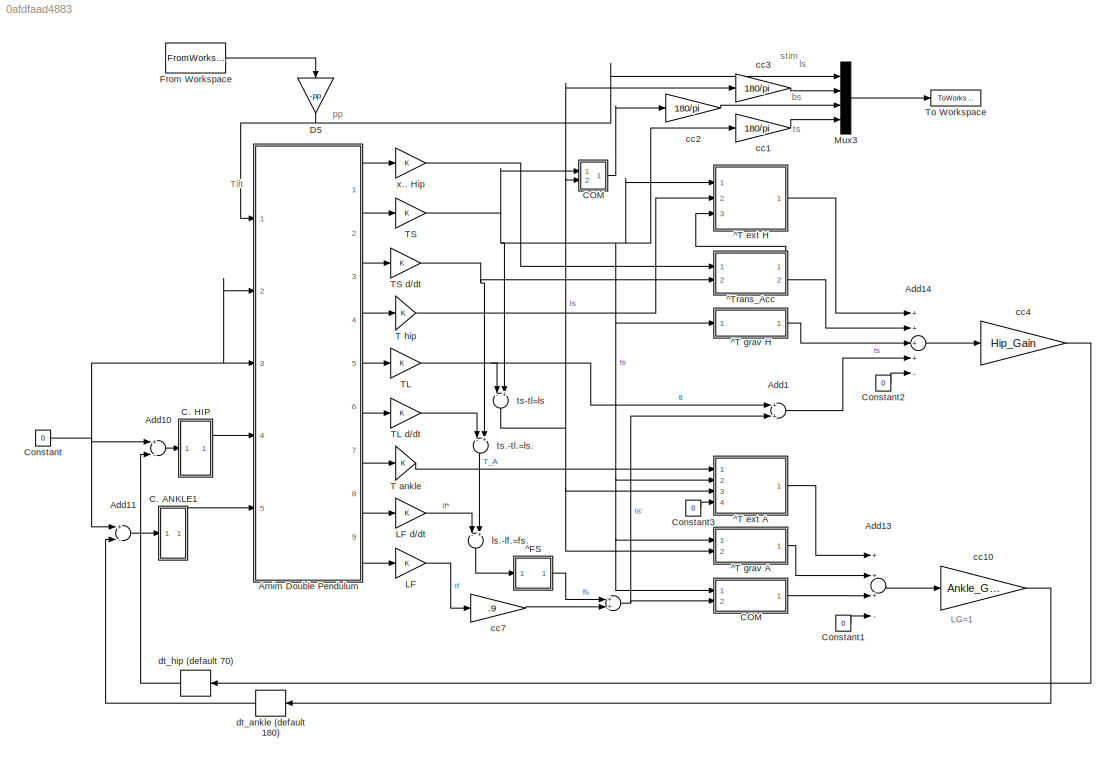
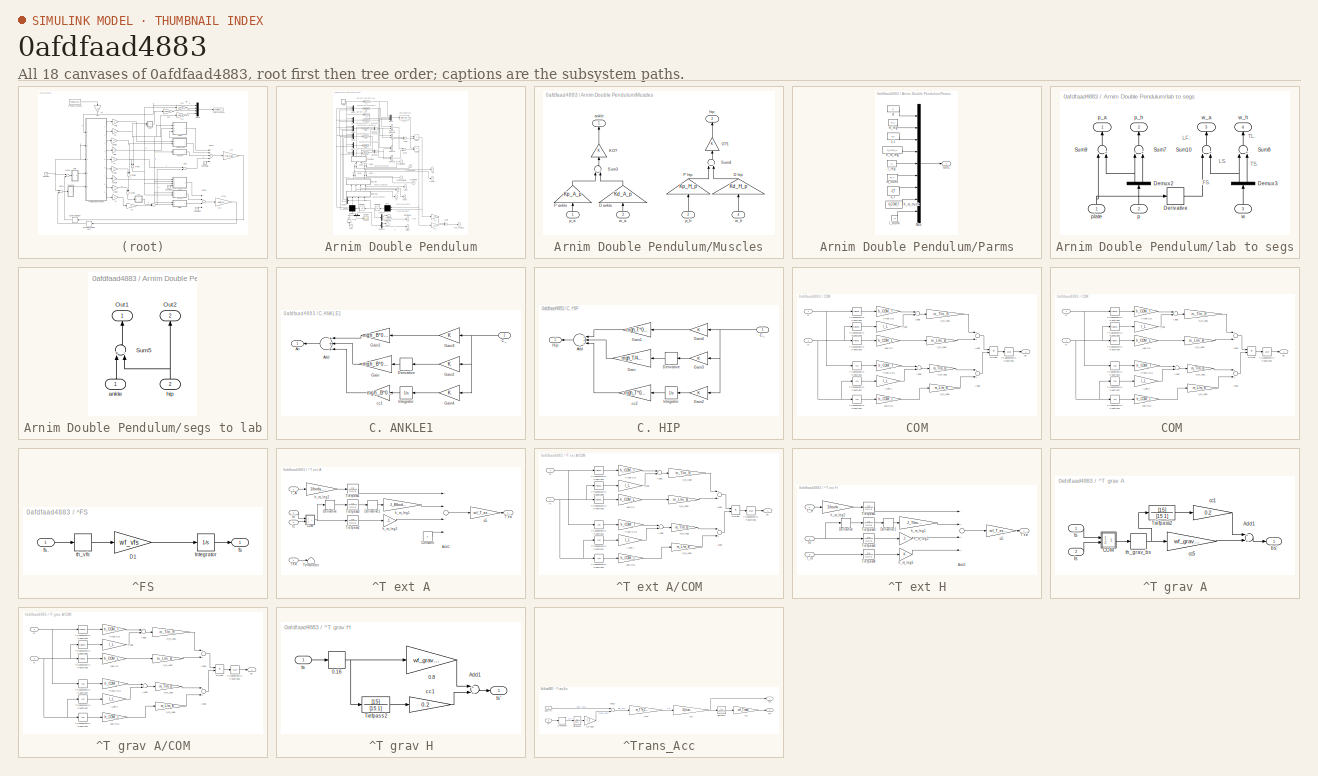
[diagram: thumbnail index - all 18 canvases of the model, root first then tree order]
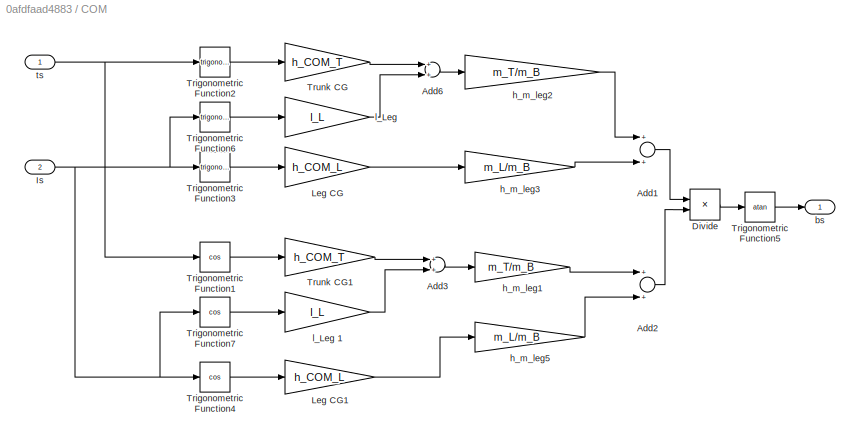
MODEL slx_0afdfaad4883
KIND model
BLOCK [Sum]  
  InputSameDT = off
  OutDataTypeStr = Inherit: Inherit via internal rule
  Ports = [2, 1]
  SaturateOnIntegerOverflow = off
BLOCK [Sum] Add1
  InputSameDT = off
  OutDataTypeStr = Inherit: Inherit via internal rule
  Ports = [2, 1]
  SaturateOnIntegerOverflow = off
BLOCK [Sum] Add10
  InputSameDT = off
  Inputs = +-
  OutDataTypeStr = Inherit: Inherit via internal rule
  Ports = [2, 1]
  SaturateOnIntegerOverflow = off
BLOCK [Sum] Add11
  InputSameDT = off
  Inputs = +-
  OutDataTypeStr = Inherit: Inherit via internal rule
  Ports = [2, 1]
  SaturateOnIntegerOverflow = off
BLOCK [Sum] Add13
  InputSameDT = off
  Inputs = +++-
  OutDataTypeStr = Inherit: Inherit via internal rule
  Ports = [4, 1]
  SaturateOnIntegerOverflow = off
BLOCK [Sum] Add14
  InputSameDT = off
  Inputs = ++++-
  OutDataTypeStr = Inherit: Inherit via internal rule
  Ports = [5, 1]
  SaturateOnIntegerOverflow = off
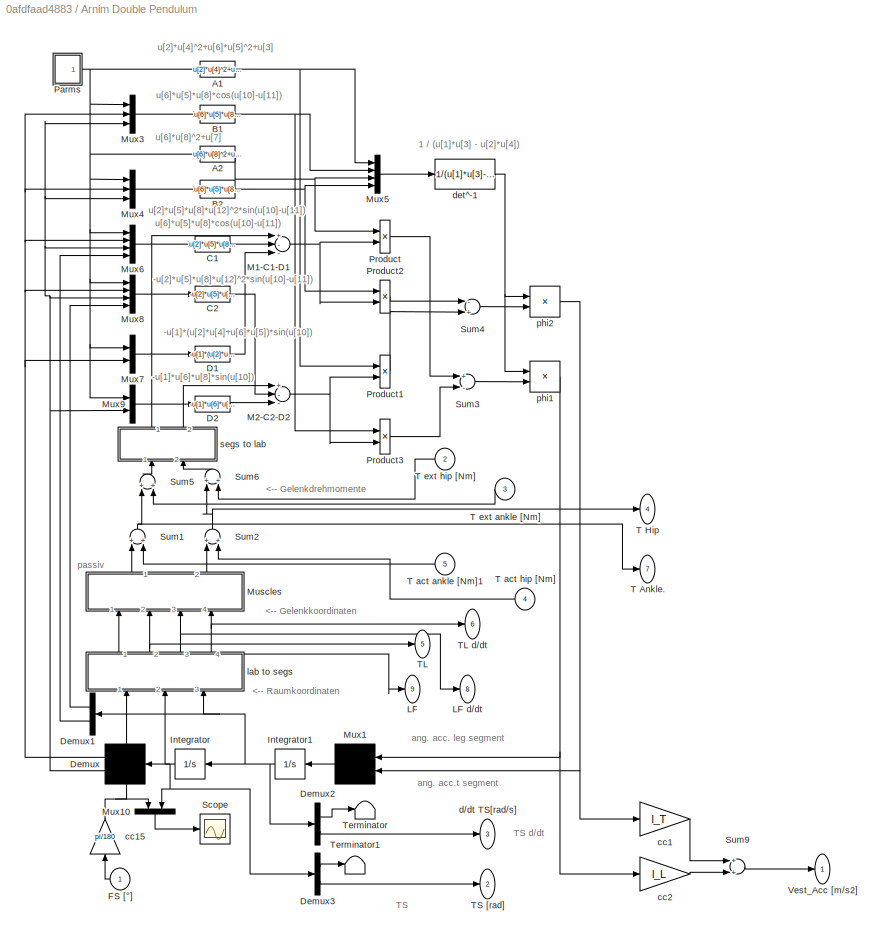
BLOCK [SubSystem] Arnim Double Pendulum
  FunctionWithSeparateData = off
  MaskHideContents = off
  MinAlgLoopOccurrences = off
  Opaque = off
  Ports = [5, 9]
  PropExecContextOutsideSubsystem = off
  RTWSystemCode = Auto
  RequestExecContextInheritance = off
BLOCK [Inport] Arnim Double Pendulum/ T act ankle [Nm]1
  IconDisplay = Port number
  Port = 5
BLOCK [Fcn] Arnim Double Pendulum/A1
  Expr = u[2]*u[4]^2+u[6]*u[5]^2+u[3]
BLOCK [Fcn] Arnim Double Pendulum/A2
  Expr = u[6]*u[8]^2+u[7]
BLOCK [Fcn] Arnim Double Pendulum/B1
  Expr = u[6]*u[5]*u[8]*cos(u[10]-u[11])
BLOCK [Fcn] Arnim Double Pendulum/B2
  Expr = u[6]*u[5]*u[8]*cos(u[10]-u[11])
BLOCK [Fcn] Arnim Double Pendulum/C1
  Expr = u[2]*u[5]*u[8]*u[12]^2*sin(u[10]-u[11])
BLOCK [Fcn] Arnim Double Pendulum/C2
  Expr = -u[2]*u[5]*u[8]*u[12]^2*sin(u[10]-u[11])
BLOCK [Fcn] Arnim Double Pendulum/D1
  Expr = -u[1]*(u[2]*u[4]+u[6]*u[5])*sin(u[10])
BLOCK [Fcn] Arnim Double Pendulum/D2
  Expr = -u[1]*u[6]*u[8]*sin(u[10])
BLOCK [Demux] Arnim Double Pendulum/Demux
  Outputs = 2
  Ports = [1, 2]
BLOCK [Demux] Arnim Double Pendulum/Demux1
  Outputs = 2
  Ports = [1, 2]
BLOCK [Demux] Arnim Double Pendulum/Demux2
  Outputs = 2
  Ports = [1, 2]
BLOCK [Demux] Arnim Double Pendulum/Demux3
  Outputs = 2
  Ports = [1, 2]
BLOCK [Inport] Arnim Double Pendulum/FS [°]
  IconDisplay = Port number
BLOCK [Integrator] Arnim Double Pendulum/Integrator
  InitialCondition = [0.0*pi,0.0*pi]
  Ports = [1, 1]
BLOCK [Integrator] Arnim Double Pendulum/Integrator1
  InitialCondition = [0,0]
  Ports = [1, 1]
BLOCK [Outport] Arnim Double Pendulum/LF
  IconDisplay = Port number
  InitialOutput = 0
  Port = 9
BLOCK [Outport] Arnim Double Pendulum/LF d//dt
  IconDisplay = Port number
  InitialOutput = 0
  Port = 8
BLOCK [Sum] Arnim Double Pendulum/M1-C1-D1
  Inputs = +--
  Ports = [3, 1]
BLOCK [Sum] Arnim Double Pendulum/M2-C2-D2
  Inputs = +--
  Ports = [3, 1]
BLOCK [SubSystem] Arnim Double Pendulum/Muscles
  FunctionWithSeparateData = off
  MaskHideContents = off
  MinAlgLoopOccurrences = off
  Opaque = off
  Ports = [4, 2]
  PropExecContextOutsideSubsystem = off
  RTWSystemCode = Auto
  RequestExecContextInheritance = off
BLOCK [Gain] Arnim Double Pendulum/Muscles/D ankle
  Gain = Kd_A_p
BLOCK [Gain] Arnim Double Pendulum/Muscles/D hip
  Gain = Kd_H_p
BLOCK [Gain] Arnim Double Pendulum/Muscles/KO?
BLOCK [Gain] Arnim Double Pendulum/Muscles/O?1
BLOCK [Gain] Arnim Double Pendulum/Muscles/P ankle
  Gain = Kp_A_p
BLOCK [Gain] Arnim Double Pendulum/Muscles/P hip
  Gain = Kp_H_p
BLOCK [Sum] Arnim Double Pendulum/Muscles/Sum3
  Inputs = --
  Ports = [2, 1]
BLOCK [Sum] Arnim Double Pendulum/Muscles/Sum4
  Inputs = --
  Ports = [2, 1]
BLOCK [Outport] Arnim Double Pendulum/Muscles/ankle
  IconDisplay = Port number
  InitialOutput = 0
BLOCK [Outport] Arnim Double Pendulum/Muscles/hip
  IconDisplay = Port number
  InitialOutput = 0
  Port = 2
BLOCK [Inport] Arnim Double Pendulum/Muscles/p_a
  IconDisplay = Port number
BLOCK [Inport] Arnim Double Pendulum/Muscles/p_h
  IconDisplay = Port number
  Port = 2
BLOCK [Inport] Arnim Double Pendulum/Muscles/w_a
  IconDisplay = Port number
  Port = 3
BLOCK [Inport] Arnim Double Pendulum/Muscles/w_h
  IconDisplay = Port number
  Port = 4
BLOCK [Mux] Arnim Double Pendulum/Mux1
  Inputs = 2
  Ports = [2, 1]
BLOCK [Mux] Arnim Double Pendulum/Mux10
  Inputs = 2
  Ports = [2, 1]
BLOCK [Mux] Arnim Double Pendulum/Mux3
  Inputs = 3
  Ports = [3, 1]
BLOCK [Mux] Arnim Double Pendulum/Mux4
  Inputs = 3
  Ports = [3, 1]
BLOCK [Mux] Arnim Double Pendulum/Mux5
  Ports = [4, 1]
BLOCK [Mux] Arnim Double Pendulum/Mux6
  Ports = [4, 1]
BLOCK [Mux] Arnim Double Pendulum/Mux7
  Inputs = 2
  Ports = [2, 1]
BLOCK [Mux] Arnim Double Pendulum/Mux8
  Ports = [4, 1]
BLOCK [Mux] Arnim Double Pendulum/Mux9
  Inputs = 2
  Ports = [2, 1]
BLOCK [SubSystem] Arnim Double Pendulum/Parms
  FunctionWithSeparateData = off
  MaskHideContents = off
  MinAlgLoopOccurrences = off
  Opaque = off
  Ports = [0, 1]
  PropExecContextOutsideSubsystem = off
  RTWSystemCode = Auto
  RequestExecContextInheritance = off
BLOCK [Constant] Arnim Double Pendulum/Parms/J_L
  Value = J_L
BLOCK [Constant] Arnim Double Pendulum/Parms/J_T
  Value = J_T
BLOCK [Mux] Arnim Double Pendulum/Parms/Mux
  Inputs = 9
  Ports = [9, 1]
BLOCK [Outport] Arnim Double Pendulum/Parms/Out1
  IconDisplay = Port number
  InitialOutput = 0
BLOCK [Constant] Arnim Double Pendulum/Parms/g
  Value = g
BLOCK [Constant] Arnim Double Pendulum/Parms/h_m_leg
  Value = h_COM_L
BLOCK [Constant] Arnim Double Pendulum/Parms/h_m_trunk
  Value = h_COM_T
BLOCK [Constant] Arnim Double Pendulum/Parms/l_leg
  Value = l_L
BLOCK [Constant] Arnim Double Pendulum/Parms/l_trunk
  Value = l_T
BLOCK [Constant] Arnim Double Pendulum/Parms/m_leg
  Value = m_L
BLOCK [Constant] Arnim Double Pendulum/Parms/m_trunk
  Value = m_T
BLOCK [Product] Arnim Double Pendulum/Product
  Ports = [2, 1]
BLOCK [Product] Arnim Double Pendulum/Product1
  Ports = [2, 1]
BLOCK [Product] Arnim Double Pendulum/Product2
  Ports = [2, 1]
BLOCK [Product] Arnim Double Pendulum/Product3
  Ports = [2, 1]
BLOCK [Scope] Arnim Double Pendulum/Scope
  Floating = off
  NumInputPorts = 1
  Ports = [1]
  SampleTime = 0
  ShowLegends = off
  TickLabels = on
  YMax = 0.0045
  YMin = -0.0005
BLOCK [Sum] Arnim Double Pendulum/Sum1
  Ports = [2, 1]
BLOCK [Sum] Arnim Double Pendulum/Sum2
  Ports = [2, 1]
BLOCK [Sum] Arnim Double Pendulum/Sum3
  Inputs = +-
  Ports = [2, 1]
BLOCK [Sum] Arnim Double Pendulum/Sum4
  Inputs = -+
  Ports = [2, 1]
BLOCK [Sum] Arnim Double Pendulum/Sum5
  Ports = [2, 1]
BLOCK [Sum] Arnim Double Pendulum/Sum6
  Ports = [2, 1]
BLOCK [Sum] Arnim Double Pendulum/Sum9
  Ports = [2, 1]
BLOCK [Outport] Arnim Double Pendulum/T  Ankle.
  IconDisplay = Port number
  InitialOutput = 0
  Port = 7
BLOCK [Outport] Arnim Double Pendulum/T  Hip 
  IconDisplay = Port number
  InitialOutput = 0
  Port = 4
BLOCK [Inport] Arnim Double Pendulum/T act hip [Nm]
  IconDisplay = Port number
  Port = 4
BLOCK [Inport] Arnim Double Pendulum/T ext ankle [Nm]
  IconDisplay = Port number
  Port = 3
BLOCK [Inport] Arnim Double Pendulum/T ext hip [Nm]
  IconDisplay = Port number
  Port = 2
BLOCK [Outport] Arnim Double Pendulum/TL
  IconDisplay = Port number
  InitialOutput = 0
  Port = 5
BLOCK [Outport] Arnim Double Pendulum/TL d//dt
  IconDisplay = Port number
  InitialOutput = 0
  Port = 6
BLOCK [Outport] Arnim Double Pendulum/TS [rad]
  IconDisplay = Port number
  InitialOutput = 0
  Port = 2
BLOCK [Terminator] Arnim Double Pendulum/Terminator
BLOCK [Terminator] Arnim Double Pendulum/Terminator1
BLOCK [Outport] Arnim Double Pendulum/Vest_Acc [m//s2]
  IconDisplay = Port number
  InitialOutput = 0
BLOCK [Gain] Arnim Double Pendulum/cc1
  Gain = l_T
  OutDataTypeStr = Inherit: Inherit via internal rule
  ParamDataTypeStr = Inherit: Inherit via internal rule
  SaturateOnIntegerOverflow = off
BLOCK [Gain] Arnim Double Pendulum/cc15
  Gain = pi/180
  OutDataTypeStr = Inherit: Inherit via internal rule
  ParamDataTypeStr = Inherit: Inherit via internal rule
  SaturateOnIntegerOverflow = off
BLOCK [Gain] Arnim Double Pendulum/cc2
  Gain = l_L
  OutDataTypeStr = Inherit: Inherit via internal rule
  ParamDataTypeStr = Inherit: Inherit via internal rule
  SaturateOnIntegerOverflow = off
BLOCK [Outport] Arnim Double Pendulum/d//dt TS[rad//s]
  IconDisplay = Port number
  InitialOutput = 0
  Port = 3
BLOCK [Fcn] Arnim Double Pendulum/det^-1
  Expr = 1/(u[1]*u[3]-u[2]*u[4])
BLOCK [SubSystem] Arnim Double Pendulum/lab to segs
  FunctionWithSeparateData = off
  MaskHideContents = off
  MinAlgLoopOccurrences = off
  Opaque = off
  Ports = [3, 4]
  PropExecContextOutsideSubsystem = off
  RTWSystemCode = Auto
  RequestExecContextInheritance = off
BLOCK [Demux] Arnim Double Pendulum/lab to segs/Demux2
  Outputs = 2
  Ports = [1, 2]
BLOCK [Demux] Arnim Double Pendulum/lab to segs/Demux3
  Outputs = 2
  Ports = [1, 2]
BLOCK [Derivative] Arnim Double Pendulum/lab to segs/Derivative
BLOCK [Sum] Arnim Double Pendulum/lab to segs/Sum10
  Inputs = -+
  Ports = [2, 1]
BLOCK [Sum] Arnim Double Pendulum/lab to segs/Sum7
  Inputs = -+
  Ports = [2, 1]
BLOCK [Sum] Arnim Double Pendulum/lab to segs/Sum8
  Inputs = -+
  Ports = [2, 1]
BLOCK [Sum] Arnim Double Pendulum/lab to segs/Sum9
  Inputs = -+
  Ports = [2, 1]
BLOCK [Inport] Arnim Double Pendulum/lab to segs/p
  IconDisplay = Port number
  Port = 2
BLOCK [Outport] Arnim Double Pendulum/lab to segs/p_a
  IconDisplay = Port number
  InitialOutput = 0
BLOCK [Outport] Arnim Double Pendulum/lab to segs/p_h
  IconDisplay = Port number
  InitialOutput = 0
  Port = 2
BLOCK [Inport] Arnim Double Pendulum/lab to segs/plate
  IconDisplay = Port number
BLOCK [Inport] Arnim Double Pendulum/lab to segs/w
  IconDisplay = Port number
  Port = 3
BLOCK [Outport] Arnim Double Pendulum/lab to segs/w_a
  IconDisplay = Port number
  InitialOutput = 0
  Port = 3
BLOCK [Outport] Arnim Double Pendulum/lab to segs/w_h
  IconDisplay = Port number
  InitialOutput = 0
  Port = 4
BLOCK [Product] Arnim Double Pendulum/phi1
  Ports = [2, 1]
BLOCK [Product] Arnim Double Pendulum/phi2
  Ports = [2, 1]
BLOCK [SubSystem] Arnim Double Pendulum/segs to lab
  FunctionWithSeparateData = off
  MaskHideContents = off
  MinAlgLoopOccurrences = off
  Opaque = off
  Ports = [2, 2]
  PropExecContextOutsideSubsystem = off
  RTWSystemCode = Auto
  RequestExecContextInheritance = off
BLOCK [Outport] Arnim Double Pendulum/segs to lab/Out1
  IconDisplay = Port number
  InitialOutput = 0
BLOCK [Outport] Arnim Double Pendulum/segs to lab/Out2
  IconDisplay = Port number
  InitialOutput = 0
  Port = 2
BLOCK [Sum] Arnim Double Pendulum/segs to lab/Sum5
  Inputs = +-
  Ports = [2, 1]
BLOCK [Inport] Arnim Double Pendulum/segs to lab/ankle
  IconDisplay = Port number
BLOCK [Inport] Arnim Double Pendulum/segs to lab/hip
  IconDisplay = Port number
  Port = 2
BLOCK [SubSystem] C. ANKLE1
  FunctionWithSeparateData = off
  MaskHideContents = off
  MinAlgLoopOccurrences = off
  Opaque = off
  Ports = [1, 1]
  PropExecContextOutsideSubsystem = off
  RTWSystemCode = Auto
  RequestExecContextInheritance = off
BLOCK [Outport] C. ANKLE1/ An
  IconDisplay = Port number
BLOCK [Sum] C. ANKLE1/Add
  InputSameDT = off
  Inputs = +++
  OutDataTypeStr = Inherit: Inherit via internal rule
  Ports = [3, 1]
  SaturateOnIntegerOverflow = off
BLOCK [Inport] C. ANKLE1/C_
  IconDisplay = Port number
BLOCK [Derivative] C. ANKLE1/Derivative
BLOCK [Gain] C. ANKLE1/Gain
  Gain = mgh_B*0.25*1.1
  OutDataTypeStr = Inherit: Inherit via internal rule
  ParamDataTypeStr = Inherit: Inherit via internal rule
  SaturateOnIntegerOverflow = off
BLOCK [Gain] C. ANKLE1/Gain1
  Gain = mgh_B*0.9
  OutDataTypeStr = Inherit: Inherit via internal rule
  ParamDataTypeStr = Inherit: Inherit via internal rule
  SaturateOnIntegerOverflow = off
BLOCK [Gain] C. ANKLE1/Gain2
  OutDataTypeStr = Inherit: Inherit via internal rule
  ParamDataTypeStr = Inherit: Inherit via internal rule
  SaturateOnIntegerOverflow = off
BLOCK [Gain] C. ANKLE1/Gain3
  OutDataTypeStr = Inherit: Inherit via internal rule
  ParamDataTypeStr = Inherit: Inherit via internal rule
  SaturateOnIntegerOverflow = off
BLOCK [Gain] C. ANKLE1/Gain4
  OutDataTypeStr = Inherit: Inherit via internal rule
  ParamDataTypeStr = Inherit: Inherit via internal rule
  SaturateOnIntegerOverflow = off
BLOCK [Integrator] C. ANKLE1/Integrator
  Ports = [1, 1]
BLOCK [Gain] C. ANKLE1/cc1
  Gain = mgh_B*0.1*0
  OutDataTypeStr = Inherit: Inherit via internal rule
  ParamDataTypeStr = Inherit: Inherit via internal rule
  SaturateOnIntegerOverflow = off
BLOCK [SubSystem] C. HIP
  FunctionWithSeparateData = off
  MaskHideContents = off
  MinAlgLoopOccurrences = off
  Opaque = off
  Ports = [1, 1]
  PropExecContextOutsideSubsystem = off
  RTWSystemCode = Auto
  RequestExecContextInheritance = off
BLOCK [Sum] C. HIP/Add
  InputSameDT = off
  Inputs = +++
  OutDataTypeStr = Inherit: Inherit via internal rule
  Ports = [3, 1]
  SaturateOnIntegerOverflow = off
BLOCK [Inport] C. HIP/C_   
  IconDisplay = Port number
BLOCK [Derivative] C. HIP/Derivative
BLOCK [Gain] C. HIP/Gain
  Gain = mgh_T/4*0.7
  OutDataTypeStr = Inherit: Inherit via internal rule
  ParamDataTypeStr = Inherit: Inherit via internal rule
  SaturateOnIntegerOverflow = off
BLOCK [Gain] C. HIP/Gain1
  Gain = mgh_T*0.8
  OutDataTypeStr = Inherit: Inherit via internal rule
  ParamDataTypeStr = Inherit: Inherit via internal rule
  SaturateOnIntegerOverflow = off
BLOCK [Gain] C. HIP/Gain2
  OutDataTypeStr = Inherit: Inherit via internal rule
  ParamDataTypeStr = Inherit: Inherit via internal rule
  SaturateOnIntegerOverflow = off
BLOCK [Gain] C. HIP/Gain3
  OutDataTypeStr = Inherit: Inherit via internal rule
  ParamDataTypeStr = Inherit: Inherit via internal rule
  SaturateOnIntegerOverflow = off
BLOCK [Gain] C. HIP/Gain4
  OutDataTypeStr = Inherit: Inherit via internal rule
  ParamDataTypeStr = Inherit: Inherit via internal rule
  SaturateOnIntegerOverflow = off
BLOCK [Outport] C. HIP/Hip
  IconDisplay = Port number
BLOCK [Integrator] C. HIP/Integrator
  Ports = [1, 1]
BLOCK [Gain] C. HIP/cc2
  Gain = mgh_T*0.1*0
  OutDataTypeStr = Inherit: Inherit via internal rule
  ParamDataTypeStr = Inherit: Inherit via internal rule
  SaturateOnIntegerOverflow = off
BLOCK [SubSystem] COM
  FunctionWithSeparateData = off
  MaskHideContents = off
  MinAlgLoopOccurrences = off
  Opaque = off
  Ports = [2, 1]
  PropExecContextOutsideSubsystem = off
  RTWSystemCode = Auto
  RequestExecContextInheritance = off
BLOCK [SubSystem] COM 
  FunctionWithSeparateData = off
  MaskHideContents = off
  MinAlgLoopOccurrences = off
  Opaque = off
  Ports = [2, 1]
  PropExecContextOutsideSubsystem = off
  RTWSystemCode = Auto
  RequestExecContextInheritance = off
BLOCK [Sum] COM /Add1
  InputSameDT = off
  OutDataTypeStr = Inherit: Inherit via internal rule
  Ports = [2, 1]
  SaturateOnIntegerOverflow = off
BLOCK [Sum] COM /Add2
  InputSameDT = off
  OutDataTypeStr = Inherit: Inherit via internal rule
  Ports = [2, 1]
  SaturateOnIntegerOverflow = off
BLOCK [Sum] COM /Add3
  InputSameDT = off
  OutDataTypeStr = Inherit: Inherit via internal rule
  Ports = [2, 1]
  SaturateOnIntegerOverflow = off
BLOCK [Sum] COM /Add6
  InputSameDT = off
  OutDataTypeStr = Inherit: Inherit via internal rule
  Ports = [2, 1]
  SaturateOnIntegerOverflow = off
BLOCK [Product] COM /Divide
  InputSameDT = off
  Inputs = */
  OutDataTypeStr = Inherit: Inherit via internal rule
  Ports = [2, 1]
  RndMeth = Floor
  SaturateOnIntegerOverflow = off
BLOCK [Inport] COM /Is
  IconDisplay = Port number
  Port = 2
BLOCK [Gain] COM /Leg CG
  Gain = h_COM_L
  OutDataTypeStr = Inherit: Inherit via internal rule
  ParamDataTypeStr = Inherit: Inherit via internal rule
  SaturateOnIntegerOverflow = off
BLOCK [Gain] COM /Leg CG1
  Gain = h_COM_L
  OutDataTypeStr = Inherit: Inherit via internal rule
  ParamDataTypeStr = Inherit: Inherit via internal rule
  SaturateOnIntegerOverflow = off
BLOCK [Trigonometry] COM /Trigonometric Function1
  Operator = cos
  Ports = [1, 1]
BLOCK [Trigonometry] COM /Trigonometric Function2
  Ports = [1, 1]
BLOCK [Trigonometry] COM /Trigonometric Function3
  Ports = [1, 1]
BLOCK [Trigonometry] COM /Trigonometric Function4
  Operator = cos
  Ports = [1, 1]
BLOCK [Trigonometry] COM /Trigonometric Function5
  Operator = atan
  Ports = [1, 1]
BLOCK [Trigonometry] COM /Trigonometric Function6
  Ports = [1, 1]
BLOCK [Trigonometry] COM /Trigonometric Function7
  Operator = cos
  Ports = [1, 1]
BLOCK [Gain] COM /Trunk CG
  Gain = h_COM_T
  OutDataTypeStr = Inherit: Inherit via internal rule
  ParamDataTypeStr = Inherit: Inherit via internal rule
  SaturateOnIntegerOverflow = off
BLOCK [Gain] COM /Trunk CG1
  Gain = h_COM_T
  OutDataTypeStr = Inherit: Inherit via internal rule
  ParamDataTypeStr = Inherit: Inherit via internal rule
  SaturateOnIntegerOverflow = off
BLOCK [Outport] COM /bs
  IconDisplay = Port number
BLOCK [Gain] COM /h_m_leg1
  Gain = m_T/m_B
  OutDataTypeStr = Inherit: Inherit via internal rule
  ParamDataTypeStr = Inherit: Inherit via internal rule
  SaturateOnIntegerOverflow = off
BLOCK [Gain] COM /h_m_leg2
  Gain = m_T/m_B
  OutDataTypeStr = Inherit: Inherit via internal rule
  ParamDataTypeStr = Inherit: Inherit via internal rule
  SaturateOnIntegerOverflow = off
BLOCK [Gain] COM /h_m_leg3
  Gain = m_L/m_B
  OutDataTypeStr = Inherit: Inherit via internal rule
  ParamDataTypeStr = Inherit: Inherit via internal rule
  SaturateOnIntegerOverflow = off
BLOCK [Gain] COM /h_m_leg5
  Gain = m_L/m_B
  OutDataTypeStr = Inherit: Inherit via internal rule
  ParamDataTypeStr = Inherit: Inherit via internal rule
  SaturateOnIntegerOverflow = off
BLOCK [Gain] COM /l_Leg 
  Gain = l_L
  OutDataTypeStr = Inherit: Inherit via internal rule
  ParamDataTypeStr = Inherit: Inherit via internal rule
  SaturateOnIntegerOverflow = off
BLOCK [Gain] COM /l_Leg 1
  Gain = l_L
  OutDataTypeStr = Inherit: Inherit via internal rule
  ParamDataTypeStr = Inherit: Inherit via internal rule
  SaturateOnIntegerOverflow = off
BLOCK [Inport] COM /ts
  IconDisplay = Port number
BLOCK [Sum] COM/Add1
  InputSameDT = off
  OutDataTypeStr = Inherit: Inherit via internal rule
  Ports = [2, 1]
  SaturateOnIntegerOverflow = off
BLOCK [Sum] COM/Add2
  InputSameDT = off
  OutDataTypeStr = Inherit: Inherit via internal rule
  Ports = [2, 1]
  SaturateOnIntegerOverflow = off
BLOCK [Sum] COM/Add3
  InputSameDT = off
  OutDataTypeStr = Inherit: Inherit via internal rule
  Ports = [2, 1]
  SaturateOnIntegerOverflow = off
BLOCK [Sum] COM/Add6
  InputSameDT = off
  OutDataTypeStr = Inherit: Inherit via internal rule
  Ports = [2, 1]
  SaturateOnIntegerOverflow = off
BLOCK [Product] COM/Divide
  InputSameDT = off
  Inputs = */
  OutDataTypeStr = Inherit: Inherit via internal rule
  Ports = [2, 1]
  RndMeth = Floor
  SaturateOnIntegerOverflow = off
BLOCK [Inport] COM/Is
  IconDisplay = Port number
  Port = 2
BLOCK [Gain] COM/Leg CG
  Gain = h_COM_L
  OutDataTypeStr = Inherit: Inherit via internal rule
  ParamDataTypeStr = Inherit: Inherit via internal rule
  SaturateOnIntegerOverflow = off
BLOCK [Gain] COM/Leg CG1
  Gain = h_COM_L
  OutDataTypeStr = Inherit: Inherit via internal rule
  ParamDataTypeStr = Inherit: Inherit via internal rule
  SaturateOnIntegerOverflow = off
BLOCK [Trigonometry] COM/Trigonometric Function1
  Operator = cos
  Ports = [1, 1]
BLOCK [Trigonometry] COM/Trigonometric Function2
  Ports = [1, 1]
BLOCK [Trigonometry] COM/Trigonometric Function3
  Ports = [1, 1]
BLOCK [Trigonometry] COM/Trigonometric Function4
  Operator = cos
  Ports = [1, 1]
BLOCK [Trigonometry] COM/Trigonometric Function5
  Operator = atan
  Ports = [1, 1]
BLOCK [Trigonometry] COM/Trigonometric Function6
  Ports = [1, 1]
BLOCK [Trigonometry] COM/Trigonometric Function7
  Operator = cos
  Ports = [1, 1]
BLOCK [Gain] COM/Trunk CG
  Gain = h_COM_T
  OutDataTypeStr = Inherit: Inherit via internal rule
  ParamDataTypeStr = Inherit: Inherit via internal rule
  SaturateOnIntegerOverflow = off
BLOCK [Gain] COM/Trunk CG1
  Gain = h_COM_T
  OutDataTypeStr = Inherit: Inherit via internal rule
  ParamDataTypeStr = Inherit: Inherit via internal rule
  SaturateOnIntegerOverflow = off
BLOCK [Outport] COM/bs
  IconDisplay = Port number
BLOCK [Gain] COM/h_m_leg1
  Gain = m_T/m_B
  OutDataTypeStr = Inherit: Inherit via internal rule
  ParamDataTypeStr = Inherit: Inherit via internal rule
  SaturateOnIntegerOverflow = off
BLOCK [Gain] COM/h_m_leg2
  Gain = m_T/m_B
  OutDataTypeStr = Inherit: Inherit via internal rule
  ParamDataTypeStr = Inherit: Inherit via internal rule
  SaturateOnIntegerOverflow = off
BLOCK [Gain] COM/h_m_leg3
  Gain = m_L/m_B
  OutDataTypeStr = Inherit: Inherit via internal rule
  ParamDataTypeStr = Inherit: Inherit via internal rule
  SaturateOnIntegerOverflow = off
BLOCK [Gain] COM/h_m_leg5
  Gain = m_L/m_B
  OutDataTypeStr = Inherit: Inherit via internal rule
  ParamDataTypeStr = Inherit: Inherit via internal rule
  SaturateOnIntegerOverflow = off
BLOCK [Gain] COM/l_Leg 
  Gain = l_L
  OutDataTypeStr = Inherit: Inherit via internal rule
  ParamDataTypeStr = Inherit: Inherit via internal rule
  SaturateOnIntegerOverflow = off
BLOCK [Gain] COM/l_Leg 1
  Gain = l_L
  OutDataTypeStr = Inherit: Inherit via internal rule
  ParamDataTypeStr = Inherit: Inherit via internal rule
  SaturateOnIntegerOverflow = off
BLOCK [Inport] COM/ts
  IconDisplay = Port number
BLOCK [Constant] Constant
  Value = 0
BLOCK [Constant] Constant1
  Value = 0
BLOCK [Constant] Constant2
  Value = 0
BLOCK [Constant] Constant3
  Value = 0
BLOCK [Gain] D5
  Gain = -pp
BLOCK [FromWorkspace] From Workspace
  VariableName = [t',stim']
BLOCK [Gain] LF 
  OutDataTypeStr = Inherit: Inherit via internal rule
  ParamDataTypeStr = Inherit: Inherit via internal rule
  SaturateOnIntegerOverflow = off
BLOCK [Gain] LF d//dt
  OutDataTypeStr = Inherit: Inherit via internal rule
  ParamDataTypeStr = Inherit: Inherit via internal rule
  SaturateOnIntegerOverflow = off
BLOCK [Mux] Mux3
  Ports = [4, 1]
BLOCK [Gain] T ankle
  OutDataTypeStr = Inherit: Inherit via internal rule
  ParamDataTypeStr = Inherit: Inherit via internal rule
  SaturateOnIntegerOverflow = off
BLOCK [Gain] T hip
  OutDataTypeStr = Inherit: Inherit via internal rule
  ParamDataTypeStr = Inherit: Inherit via internal rule
  SaturateOnIntegerOverflow = off
BLOCK [Gain] TL
  OutDataTypeStr = Inherit: Inherit via internal rule
  ParamDataTypeStr = Inherit: Inherit via internal rule
  SaturateOnIntegerOverflow = off
BLOCK [Gain] TL d//dt
  OutDataTypeStr = Inherit: Inherit via internal rule
  ParamDataTypeStr = Inherit: Inherit via internal rule
  SaturateOnIntegerOverflow = off
BLOCK [Gain] TS
  OutDataTypeStr = Inherit: Inherit via internal rule
  ParamDataTypeStr = Inherit: Inherit via internal rule
  SaturateOnIntegerOverflow = off
BLOCK [Gain] TS d//dt
  OutDataTypeStr = Inherit: Inherit via internal rule
  ParamDataTypeStr = Inherit: Inherit via internal rule
  SaturateOnIntegerOverflow = off
BLOCK [ToWorkspace] To Workspace
  MaxDataPoints = inf
  Ports = [1]
  VariableName = yout
BLOCK [SubSystem] ^FS
  FunctionWithSeparateData = off
  MaskHideContents = off
  MinAlgLoopOccurrences = off
  Opaque = off
  Ports = [1, 1]
  PropExecContextOutsideSubsystem = off
  RTWSystemCode = Auto
  RequestExecContextInheritance = off
BLOCK [Gain] ^FS/D1
  Gain = wf_vfs
BLOCK [Integrator] ^FS/Integrator
  Ports = [1, 1]
BLOCK [Outport] ^FS/fs
  IconDisplay = Port number
BLOCK [Inport] ^FS/fs.
  IconDisplay = Port number
BLOCK [DeadZone] ^FS/th_vfs
  LowerValue = -th_vfs
  UpperValue = th_vfs
BLOCK [SubSystem] ^T ext A
  FunctionWithSeparateData = off
  MaskHideContents = off
  MinAlgLoopOccurrences = off
  Opaque = off
  Ports = [4, 1]
  PropExecContextOutsideSubsystem = off
  RTWSystemCode = Auto
  RequestExecContextInheritance = off
BLOCK [Sum] ^T ext A/Add1
  InputSameDT = off
  Inputs = +---
  OutDataTypeStr = Inherit: Inherit via internal rule
  Ports = [4, 1]
  SaturateOnIntegerOverflow = off
BLOCK [SubSystem] ^T ext A/COM
  FunctionWithSeparateData = off
  MaskHideContents = off
  MinAlgLoopOccurrences = off
  Opaque = off
  Ports = [2, 1]
  PropExecContextOutsideSubsystem = off
  RTWSystemCode = Auto
  RequestExecContextInheritance = off
BLOCK [Sum] ^T ext A/COM/Add1
  InputSameDT = off
  OutDataTypeStr = Inherit: Inherit via internal rule
  Ports = [2, 1]
  SaturateOnIntegerOverflow = off
BLOCK [Sum] ^T ext A/COM/Add2
  InputSameDT = off
  OutDataTypeStr = Inherit: Inherit via internal rule
  Ports = [2, 1]
  SaturateOnIntegerOverflow = off
BLOCK [Sum] ^T ext A/COM/Add3
  InputSameDT = off
  OutDataTypeStr = Inherit: Inherit via internal rule
  Ports = [2, 1]
  SaturateOnIntegerOverflow = off
BLOCK [Sum] ^T ext A/COM/Add6
  InputSameDT = off
  OutDataTypeStr = Inherit: Inherit via internal rule
  Ports = [2, 1]
  SaturateOnIntegerOverflow = off
BLOCK [Product] ^T ext A/COM/Divide
  InputSameDT = off
  Inputs = */
  OutDataTypeStr = Inherit: Inherit via internal rule
  Ports = [2, 1]
  RndMeth = Floor
  SaturateOnIntegerOverflow = off
BLOCK [Inport] ^T ext A/COM/Is
  IconDisplay = Port number
  Port = 2
BLOCK [Gain] ^T ext A/COM/Leg CG
  Gain = h_COM_L
  OutDataTypeStr = Inherit: Inherit via internal rule
  ParamDataTypeStr = Inherit: Inherit via internal rule
  SaturateOnIntegerOverflow = off
BLOCK [Gain] ^T ext A/COM/Leg CG1
  Gain = h_COM_L
  OutDataTypeStr = Inherit: Inherit via internal rule
  ParamDataTypeStr = Inherit: Inherit via internal rule
  SaturateOnIntegerOverflow = off
BLOCK [Trigonometry] ^T ext A/COM/Trigonometric Function1
  Operator = cos
  Ports = [1, 1]
BLOCK [Trigonometry] ^T ext A/COM/Trigonometric Function2
  Ports = [1, 1]
BLOCK [Trigonometry] ^T ext A/COM/Trigonometric Function3
  Ports = [1, 1]
BLOCK [Trigonometry] ^T ext A/COM/Trigonometric Function4
  Operator = cos
  Ports = [1, 1]
BLOCK [Trigonometry] ^T ext A/COM/Trigonometric Function5
  Operator = atan
  Ports = [1, 1]
BLOCK [Trigonometry] ^T ext A/COM/Trigonometric Function6
  Ports = [1, 1]
BLOCK [Trigonometry] ^T ext A/COM/Trigonometric Function7
  Operator = cos
  Ports = [1, 1]
BLOCK [Gain] ^T ext A/COM/Trunk CG
  Gain = h_COM_T
  OutDataTypeStr = Inherit: Inherit via internal rule
  ParamDataTypeStr = Inherit: Inherit via internal rule
  SaturateOnIntegerOverflow = off
BLOCK [Gain] ^T ext A/COM/Trunk CG1
  Gain = h_COM_T
  OutDataTypeStr = Inherit: Inherit via internal rule
  ParamDataTypeStr = Inherit: Inherit via internal rule
  SaturateOnIntegerOverflow = off
BLOCK [Outport] ^T ext A/COM/bs
  IconDisplay = Port number
BLOCK [Gain] ^T ext A/COM/h_m_leg1
  Gain = m_T/m_B
  OutDataTypeStr = Inherit: Inherit via internal rule
  ParamDataTypeStr = Inherit: Inherit via internal rule
  SaturateOnIntegerOverflow = off
BLOCK [Gain] ^T ext A/COM/h_m_leg2
  Gain = m_T/m_B
  OutDataTypeStr = Inherit: Inherit via internal rule
  ParamDataTypeStr = Inherit: Inherit via internal rule
  SaturateOnIntegerOverflow = off
BLOCK [Gain] ^T ext A/COM/h_m_leg3
  Gain = m_L/m_B
  OutDataTypeStr = Inherit: Inherit via internal rule
  ParamDataTypeStr = Inherit: Inherit via internal rule
  SaturateOnIntegerOverflow = off
BLOCK [Gain] ^T ext A/COM/h_m_leg5
  Gain = m_L/m_B
  OutDataTypeStr = Inherit: Inherit via internal rule
  ParamDataTypeStr = Inherit: Inherit via internal rule
  SaturateOnIntegerOverflow = off
BLOCK [Gain] ^T ext A/COM/l_Leg 
  Gain = l_L
  OutDataTypeStr = Inherit: Inherit via internal rule
  ParamDataTypeStr = Inherit: Inherit via internal rule
  SaturateOnIntegerOverflow = off
BLOCK [Gain] ^T ext A/COM/l_Leg 1
  Gain = l_L
  OutDataTypeStr = Inherit: Inherit via internal rule
  ParamDataTypeStr = Inherit: Inherit via internal rule
  SaturateOnIntegerOverflow = off
BLOCK [Inport] ^T ext A/COM/ts
  IconDisplay = Port number
BLOCK [Constant] ^T ext A/Constant
  Value = 0
BLOCK [Derivative] ^T ext A/Derivative
BLOCK [Derivative] ^T ext A/Derivative1
BLOCK [Outport] ^T ext A/T ext
  IconDisplay = Port number
BLOCK [Inport] ^T ext A/T_A
  IconDisplay = Port number
BLOCK [Terminator] ^T ext A/Terminator
BLOCK [Inport] ^T ext A/Text
  IconDisplay = Port number
  Port = 4
BLOCK [TransferFcn] ^T ext A/Tiefpass1
  Denominator = [0.5 1]
BLOCK [TransferFcn] ^T ext A/Tiefpass2
  Denominator = [0.5 1]
BLOCK [TransferFcn] ^T ext A/Tiefpass3
  Denominator = [0.5 1]
BLOCK [Gain] ^T ext A/cc5
  Gain = wf_T_ext_A
  OutDataTypeStr = Inherit: Inherit via internal rule
  ParamDataTypeStr = Inherit: Inherit via internal rule
  SaturateOnIntegerOverflow = off
BLOCK [Gain] ^T ext A/h_m_leg1
  Gain = J_B/body_mgh
  OutDataTypeStr = Inherit: Inherit via internal rule
  ParamDataTypeStr = Inherit: Inherit via internal rule
  SaturateOnIntegerOverflow = off
BLOCK [Gain] ^T ext A/h_m_leg2
  Gain = 1/body_mgh
  OutDataTypeStr = Inherit: Inherit via internal rule
  ParamDataTypeStr = Inherit: Inherit via internal rule
  SaturateOnIntegerOverflow = off
BLOCK [Gain] ^T ext A/h_m_leg3
  Gain = -1
  OutDataTypeStr = Inherit: Inherit via internal rule
  ParamDataTypeStr = Inherit: Inherit via internal rule
  SaturateOnIntegerOverflow = off
BLOCK [Inport] ^T ext A/ls
  IconDisplay = Port number
  Port = 3
BLOCK [Inport] ^T ext A/ts
  IconDisplay = Port number
  Port = 2
BLOCK [SubSystem] ^T ext H
  FunctionWithSeparateData = off
  MaskHideContents = off
  MinAlgLoopOccurrences = off
  Opaque = off
  Ports = [3, 1]
  PropExecContextOutsideSubsystem = off
  RTWSystemCode = Auto
  RequestExecContextInheritance = off
BLOCK [Sum] ^T ext H/Add1
  InputSameDT = off
  Inputs = -+++
  OutDataTypeStr = Inherit: Inherit via internal rule
  Ports = [4, 1]
  SaturateOnIntegerOverflow = off
BLOCK [Derivative] ^T ext H/Derivative
BLOCK [Derivative] ^T ext H/Derivative1
BLOCK [Outport] ^T ext H/T ext
  IconDisplay = Port number
BLOCK [Inport] ^T ext H/T_H
  IconDisplay = Port number
  Port = 2
BLOCK [Inport] ^T ext H/T_in
  IconDisplay = Port number
  Port = 3
BLOCK [TransferFcn] ^T ext H/Tiefpass1
  Denominator = [0.5 1]
BLOCK [TransferFcn] ^T ext H/Tiefpass2
  Denominator = [0.5 1]
BLOCK [TransferFcn] ^T ext H/Tiefpass3
  Denominator = [0.5 1]
BLOCK [TransferFcn] ^T ext H/Tiefpass4
  Denominator = [0.5 1]
BLOCK [Gain] ^T ext H/cc5
  Gain = wf_T_ext_H
  OutDataTypeStr = Inherit: Inherit via internal rule
  ParamDataTypeStr = Inherit: Inherit via internal rule
  SaturateOnIntegerOverflow = off
BLOCK [Gain] ^T ext H/h_m_leg1
  Gain = J_T/trunk_mgh
  OutDataTypeStr = Inherit: Inherit via internal rule
  ParamDataTypeStr = Inherit: Inherit via internal rule
  SaturateOnIntegerOverflow = off
BLOCK [Gain] ^T ext H/h_m_leg2
  Gain = 1/trunk_mgh
  OutDataTypeStr = Inherit: Inherit via internal rule
  ParamDataTypeStr = Inherit: Inherit via internal rule
  SaturateOnIntegerOverflow = off
BLOCK [Gain] ^T ext H/h_m_leg3
  Gain = -1
  OutDataTypeStr = Inherit: Inherit via internal rule
  ParamDataTypeStr = Inherit: Inherit via internal rule
  SaturateOnIntegerOverflow = off
BLOCK [Gain] ^T ext H/h_m_leg6
  OutDataTypeStr = Inherit: Inherit via internal rule
  ParamDataTypeStr = Inherit: Inherit via internal rule
  SaturateOnIntegerOverflow = off
BLOCK [Inport] ^T ext H/ts
  IconDisplay = Port number
BLOCK [SubSystem] ^T grav A
  FunctionWithSeparateData = off
  MaskHideContents = off
  MinAlgLoopOccurrences = off
  Opaque = off
  Ports = [2, 1]
  PropExecContextOutsideSubsystem = off
  RTWSystemCode = Auto
  RequestExecContextInheritance = off
BLOCK [Sum] ^T grav A/Add1
  InputSameDT = off
  OutDataTypeStr = Inherit: Inherit via internal rule
  Ports = [2, 1]
  SaturateOnIntegerOverflow = off
BLOCK [SubSystem] ^T grav A/COM
  FunctionWithSeparateData = off
  MaskHideContents = off
  MinAlgLoopOccurrences = off
  Opaque = off
  Ports = [2, 1]
  PropExecContextOutsideSubsystem = off
  RTWSystemCode = Auto
  RequestExecContextInheritance = off
BLOCK [Sum] ^T grav A/COM/Add1
  InputSameDT = off
  OutDataTypeStr = Inherit: Inherit via internal rule
  Ports = [2, 1]
  SaturateOnIntegerOverflow = off
BLOCK [Sum] ^T grav A/COM/Add2
  InputSameDT = off
  OutDataTypeStr = Inherit: Inherit via internal rule
  Ports = [2, 1]
  SaturateOnIntegerOverflow = off
BLOCK [Sum] ^T grav A/COM/Add3
  InputSameDT = off
  OutDataTypeStr = Inherit: Inherit via internal rule
  Ports = [2, 1]
  SaturateOnIntegerOverflow = off
BLOCK [Sum] ^T grav A/COM/Add6
  InputSameDT = off
  OutDataTypeStr = Inherit: Inherit via internal rule
  Ports = [2, 1]
  SaturateOnIntegerOverflow = off
BLOCK [Product] ^T grav A/COM/Divide
  InputSameDT = off
  Inputs = */
  OutDataTypeStr = Inherit: Inherit via internal rule
  Ports = [2, 1]
  RndMeth = Floor
  SaturateOnIntegerOverflow = off
BLOCK [Inport] ^T grav A/COM/Is
  IconDisplay = Port number
  Port = 2
BLOCK [Gain] ^T grav A/COM/Leg CG
  Gain = h_COM_L
  OutDataTypeStr = Inherit: Inherit via internal rule
  ParamDataTypeStr = Inherit: Inherit via internal rule
  SaturateOnIntegerOverflow = off
BLOCK [Gain] ^T grav A/COM/Leg CG1
  Gain = h_COM_L
  OutDataTypeStr = Inherit: Inherit via internal rule
  ParamDataTypeStr = Inherit: Inherit via internal rule
  SaturateOnIntegerOverflow = off
BLOCK [Trigonometry] ^T grav A/COM/Trigonometric Function1
  Operator = cos
  Ports = [1, 1]
BLOCK [Trigonometry] ^T grav A/COM/Trigonometric Function2
  Ports = [1, 1]
BLOCK [Trigonometry] ^T grav A/COM/Trigonometric Function3
  Ports = [1, 1]
BLOCK [Trigonometry] ^T grav A/COM/Trigonometric Function4
  Operator = cos
  Ports = [1, 1]
BLOCK [Trigonometry] ^T grav A/COM/Trigonometric Function5
  Operator = atan
  Ports = [1, 1]
BLOCK [Trigonometry] ^T grav A/COM/Trigonometric Function6
  Ports = [1, 1]
BLOCK [Trigonometry] ^T grav A/COM/Trigonometric Function7
  Operator = cos
  Ports = [1, 1]
BLOCK [Gain] ^T grav A/COM/Trunk CG
  Gain = h_COM_T
  OutDataTypeStr = Inherit: Inherit via internal rule
  ParamDataTypeStr = Inherit: Inherit via internal rule
  SaturateOnIntegerOverflow = off
BLOCK [Gain] ^T grav A/COM/Trunk CG1
  Gain = h_COM_T
  OutDataTypeStr = Inherit: Inherit via internal rule
  ParamDataTypeStr = Inherit: Inherit via internal rule
  SaturateOnIntegerOverflow = off
BLOCK [Outport] ^T grav A/COM/bs
  IconDisplay = Port number
BLOCK [Gain] ^T grav A/COM/h_m_leg1
  Gain = m_T/m_B
  OutDataTypeStr = Inherit: Inherit via internal rule
  ParamDataTypeStr = Inherit: Inherit via internal rule
  SaturateOnIntegerOverflow = off
BLOCK [Gain] ^T grav A/COM/h_m_leg2
  Gain = m_T/m_B
  OutDataTypeStr = Inherit: Inherit via internal rule
  ParamDataTypeStr = Inherit: Inherit via internal rule
  SaturateOnIntegerOverflow = off
BLOCK [Gain] ^T grav A/COM/h_m_leg3
  Gain = m_L/m_B
  OutDataTypeStr = Inherit: Inherit via internal rule
  ParamDataTypeStr = Inherit: Inherit via internal rule
  SaturateOnIntegerOverflow = off
BLOCK [Gain] ^T grav A/COM/h_m_leg5
  Gain = m_L/m_B
  OutDataTypeStr = Inherit: Inherit via internal rule
  ParamDataTypeStr = Inherit: Inherit via internal rule
  SaturateOnIntegerOverflow = off
BLOCK [Gain] ^T grav A/COM/l_Leg 
  Gain = l_L
  OutDataTypeStr = Inherit: Inherit via internal rule
  ParamDataTypeStr = Inherit: Inherit via internal rule
  SaturateOnIntegerOverflow = off
BLOCK [Gain] ^T grav A/COM/l_Leg 1
  Gain = l_L
  OutDataTypeStr = Inherit: Inherit via internal rule
  ParamDataTypeStr = Inherit: Inherit via internal rule
  SaturateOnIntegerOverflow = off
BLOCK [Inport] ^T grav A/COM/ts
  IconDisplay = Port number
BLOCK [TransferFcn] ^T grav A/Tiefpass2
  Denominator = [15 1]
  Numerator = [15]
BLOCK [Outport] ^T grav A/bs'
  IconDisplay = Port number
BLOCK [Gain] ^T grav A/cc1
  Gain = 0.2
  OutDataTypeStr = Inherit: Inherit via internal rule
  ParamDataTypeStr = Inherit: Inherit via internal rule
  SaturateOnIntegerOverflow = off
BLOCK [Gain] ^T grav A/cc5
  Gain = wf_grav_bs
  OutDataTypeStr = Inherit: Inherit via internal rule
  ParamDataTypeStr = Inherit: Inherit via internal rule
  SaturateOnIntegerOverflow = off
BLOCK [Inport] ^T grav A/ls
  IconDisplay = Port number
  Port = 2
BLOCK [DeadZone] ^T grav A/th_grav_bs
  LowerValue = -th_grav_bs
  UpperValue = th_grav_bs
BLOCK [Inport] ^T grav A/ts
  IconDisplay = Port number
BLOCK [SubSystem] ^T grav H
  FunctionWithSeparateData = off
  MaskHideContents = off
  MinAlgLoopOccurrences = off
  Opaque = off
  Ports = [1, 1]
  PropExecContextOutsideSubsystem = off
  RTWSystemCode = Auto
  RequestExecContextInheritance = off
BLOCK [DeadZone] ^T grav H/0.16
  LowerValue = -th_grav_ts
  UpperValue = th_grav_ts
BLOCK [Gain] ^T grav H/0.8
  Gain = wf_grav_ts
  OutDataTypeStr = Inherit: Inherit via internal rule
  ParamDataTypeStr = Inherit: Inherit via internal rule
  SaturateOnIntegerOverflow = off
BLOCK [Sum] ^T grav H/Add1
  InputSameDT = off
  OutDataTypeStr = Inherit: Inherit via internal rule
  Ports = [2, 1]
  SaturateOnIntegerOverflow = off
BLOCK [TransferFcn] ^T grav H/Tiefpass2
  Denominator = [15 1]
  Numerator = [15]
BLOCK [Gain] ^T grav H/cc1
  Gain = 0.2
  OutDataTypeStr = Inherit: Inherit via internal rule
  ParamDataTypeStr = Inherit: Inherit via internal rule
  SaturateOnIntegerOverflow = off
BLOCK [Inport] ^T grav H/ts
  IconDisplay = Port number
BLOCK [Outport] ^T grav H/ts'
  IconDisplay = Port number
BLOCK [SubSystem] ^Trans_Acc
  FunctionWithSeparateData = off
  MaskHideContents = off
  MinAlgLoopOccurrences = off
  Opaque = off
  Ports = [2, 2]
  PropExecContextOutsideSubsystem = off
  RTWSystemCode = Auto
  RequestExecContextInheritance = off
BLOCK [Sum] ^Trans_Acc/Add10
  InputSameDT = off
  Inputs = -+
  OutDataTypeStr = Inherit: Inherit via internal rule
  Ports = [2, 1]
  SaturateOnIntegerOverflow = off
BLOCK [Derivative] ^Trans_Acc/Derivative
BLOCK [Outport] ^Trans_Acc/T_in
  IconDisplay = Port number
  Port = 2
BLOCK [Outport] ^Trans_Acc/T_in 
  IconDisplay = Port number
BLOCK [TransferFcn] ^Trans_Acc/Tiefpass1
  Denominator = [0.5 1]
BLOCK [TransferFcn] ^Trans_Acc/Tiefpass2
  Denominator = [0.1 1]
BLOCK [Inport] ^Trans_Acc/Vest x**
  IconDisplay = Port number
BLOCK [Gain] ^Trans_Acc/cc10
  Gain = m_T*h_COM_T
  OutDataTypeStr = Inherit: Inherit via internal rule
  ParamDataTypeStr = Inherit: Inherit via internal rule
  SaturateOnIntegerOverflow = off
BLOCK [Gain] ^Trans_Acc/cc2
  Gain = wf_Trans
  OutDataTypeStr = Inherit: Inherit via internal rule
  ParamDataTypeStr = Inherit: Inherit via internal rule
  SaturateOnIntegerOverflow = off
BLOCK [Gain] ^Trans_Acc/cc5
  Gain = 1/(trunk_mgh)
  OutDataTypeStr = Inherit: Inherit via internal rule
  ParamDataTypeStr = Inherit: Inherit via internal rule
  SaturateOnIntegerOverflow = off
BLOCK [Gain] ^Trans_Acc/h_m_leg2
  Gain = l_T
  OutDataTypeStr = Inherit: Inherit via internal rule
  ParamDataTypeStr = Inherit: Inherit via internal rule
  SaturateOnIntegerOverflow = off
BLOCK [Inport] ^Trans_Acc/ts*
  IconDisplay = Port number
  Port = 2
BLOCK [Gain] cc1
  Gain = 180/pi
  OutDataTypeStr = Inherit: Inherit via internal rule
  ParamDataTypeStr = Inherit: Inherit via internal rule
  SaturateOnIntegerOverflow = off
BLOCK [Gain] cc10
  Gain = Ankle_Gain
  OutDataTypeStr = Inherit: Inherit via internal rule
  ParamDataTypeStr = Inherit: Inherit via internal rule
  SaturateOnIntegerOverflow = off
BLOCK [Gain] cc2
  Gain = 180/pi
  OutDataTypeStr = Inherit: Inherit via internal rule
  ParamDataTypeStr = Inherit: Inherit via internal rule
  SaturateOnIntegerOverflow = off
BLOCK [Gain] cc3
  Gain = 180/pi
  OutDataTypeStr = Inherit: Inherit via internal rule
  ParamDataTypeStr = Inherit: Inherit via internal rule
  SaturateOnIntegerOverflow = off
BLOCK [Gain] cc4
  Gain = Hip_Gain
  OutDataTypeStr = Inherit: Inherit via internal rule
  ParamDataTypeStr = Inherit: Inherit via internal rule
  SaturateOnIntegerOverflow = off
BLOCK [Gain] cc7
  Gain = .9
  OutDataTypeStr = Inherit: Inherit via internal rule
  ParamDataTypeStr = Inherit: Inherit via internal rule
  SaturateOnIntegerOverflow = off
BLOCK [TransportDelay] dt_ankle (default 180)
  DelayTime = dt_ankle
  Ports = [1, 1]
BLOCK [TransportDelay] dt_hip (default 70)
  DelayTime = dt_hip
  Ports = [1, 1]
BLOCK [Sum] ls.-lf.=fs.
  InputSameDT = off
  Inputs = -+
  OutDataTypeStr = Inherit: Inherit via internal rule
  Ports = [2, 1]
  SaturateOnIntegerOverflow = off
BLOCK [Sum] ts-tl=ls
  InputSameDT = off
  Inputs = -+
  OutDataTypeStr = Inherit: Inherit via internal rule
  Ports = [2, 1]
  SaturateOnIntegerOverflow = off
BLOCK [Sum] ts.-tl.=ls.
  InputSameDT = off
  Inputs = -+
  OutDataTypeStr = Inherit: Inherit via internal rule
  Ports = [2, 1]
  SaturateOnIntegerOverflow = off
BLOCK [Gain] x.. Hip
  OutDataTypeStr = Inherit: Inherit via internal rule
  ParamDataTypeStr = Inherit: Inherit via internal rule
  SaturateOnIntegerOverflow = off
ANNOTATION (root): LG=1
ANNOTATION (root): Tilt
ANNOTATION (root): bs
ANNOTATION (root): ls
ANNOTATION (root): pp
ANNOTATION (root): stim
ANNOTATION (root): ts
ANNOTATION Arnim Double Pendulum: -u[1]*(u[2]*u[4]+u[6]*u[5])*sin(u[10])
ANNOTATION Arnim Double Pendulum: -u[1]*u[6]*u[8]*sin(u[10])
ANNOTATION Arnim Double Pendulum: -u[2]*u[5]*u[8]*u[12]^2*sin(u[10]-u[11])
ANNOTATION Arnim Double Pendulum: 1 / (u[1]*u[3] - u[2]*u[4])
ANNOTATION Arnim Double Pendulum: <-- Gelenkdrehmomente
ANNOTATION Arnim Double Pendulum: <-- Gelenkkoordinaten
ANNOTATION Arnim Double Pendulum: <-- Raumkoordinaten
ANNOTATION Arnim Double Pendulum: TS
ANNOTATION Arnim Double Pendulum: TS d/dt
ANNOTATION Arnim Double Pendulum: ang. acc. leg segment
ANNOTATION Arnim Double Pendulum: ang. acc.t segment
ANNOTATION Arnim Double Pendulum: passiv
ANNOTATION Arnim Double Pendulum: u[2]*u[4]^2+u[6]*u[5]^2+u[3]
ANNOTATION Arnim Double Pendulum: u[2]*u[5]*u[8]*u[12]^2*sin(u[10]-u[11])
ANNOTATION Arnim Double Pendulum: u[6]*u[5]*u[8]*cos(u[10]-u[11])
ANNOTATION Arnim Double Pendulum: u[6]*u[8]^2+u[7]
ANNOTATION Arnim Double Pendulum/lab to segs: FS.
ANNOTATION Arnim Double Pendulum/lab to segs: LF.
ANNOTATION Arnim Double Pendulum/lab to segs: LS.
ANNOTATION Arnim Double Pendulum/lab to segs: TL.
ANNOTATION Arnim Double Pendulum/lab to segs: TS.
NET  :1 -> Add1:2, COM:2
LINE Add10:1 -> C. HIP:1
LINE Add11:1 -> C. ANKLE1:1
LINE Add13:1 -> cc10:1
LINE Add14:1 -> cc4:1
LINE Add1:1 -> Add14:4
LINE Arnim Double Pendulum/ T act ankle [Nm]1:1 -> Arnim Double Pendulum/Sum1:2
NET Arnim Double Pendulum/A1:1 -> Arnim Double Pendulum/Mux5:1, Arnim Double Pendulum/Product1:1
NET Arnim Double Pendulum/A2:1 -> Arnim Double Pendulum/Mux5:3, Arnim Double Pendulum/Product:1
NET Arnim Double Pendulum/B1:1 -> Arnim Double Pendulum/Mux5:2, Arnim Double Pendulum/Product3:1
NET Arnim Double Pendulum/B2:1 -> Arnim Double Pendulum/Mux5:4, Arnim Double Pendulum/Product2:1
LINE Arnim Double Pendulum/C1:1 -> Arnim Double Pendulum/M1-C1-D1:2
LINE Arnim Double Pendulum/C2:1 -> Arnim Double Pendulum/M2-C2-D2:2
LINE Arnim Double Pendulum/D1:1 -> Arnim Double Pendulum/M1-C1-D1:3
LINE Arnim Double Pendulum/D2:1 -> Arnim Double Pendulum/M2-C2-D2:3
LINE Arnim Double Pendulum/Demux1:1 -> Arnim Double Pendulum/Mux8:4
LINE Arnim Double Pendulum/Demux1:2 -> Arnim Double Pendulum/Mux6:4
LINE Arnim Double Pendulum/Demux2:1 -> Arnim Double Pendulum/Terminator:1
LINE Arnim Double Pendulum/Demux2:2 -> Arnim Double Pendulum/d//dt TS[rad//s]:1
LINE Arnim Double Pendulum/Demux3:1 -> Arnim Double Pendulum/Terminator1:1
LINE Arnim Double Pendulum/Demux3:2 -> Arnim Double Pendulum/TS [rad]:1
NET Arnim Double Pendulum/Demux:1 -> Arnim Double Pendulum/Mux3:2, Arnim Double Pendulum/Mux4:2, Arnim Double Pendulum/Mux6:2, Arnim Double Pendulum/Mux7:2, Arnim Double Pendulum/Mux8:2
NET Arnim Double Pendulum/Demux:2 -> Arnim Double Pendulum/Mux3:3, Arnim Double Pendulum/Mux4:3, Arnim Double Pendulum/Mux6:3, Arnim Double Pendulum/Mux8:3, Arnim Double Pendulum/Mux9:2
LINE Arnim Double Pendulum/FS [°]:1 -> Arnim Double Pendulum/cc15:1
NET Arnim Double Pendulum/Integrator1:1 -> Arnim Double Pendulum/Demux1:1, Arnim Double Pendulum/Demux2:1, Arnim Double Pendulum/Integrator:1, Arnim Double Pendulum/lab to segs:3
NET Arnim Double Pendulum/Integrator:1 -> Arnim Double Pendulum/Demux3:1, Arnim Double Pendulum/Demux:1, Arnim Double Pendulum/Mux10:2, Arnim Double Pendulum/lab to segs:2
NET Arnim Double Pendulum/M1-C1-D1:1 -> Arnim Double Pendulum/Product2:2, Arnim Double Pendulum/Product:2
NET Arnim Double Pendulum/M2-C2-D2:1 -> Arnim Double Pendulum/Product1:2, Arnim Double Pendulum/Product3:2
LINE Arnim Double Pendulum/Muscles/D ankle:1 -> Arnim Double Pendulum/Muscles/Sum3:2
LINE Arnim Double Pendulum/Muscles/D hip:1 -> Arnim Double Pendulum/Muscles/Sum4:2
LINE Arnim Double Pendulum/Muscles/KO?:1 -> Arnim Double Pendulum/Muscles/ankle:1
LINE Arnim Double Pendulum/Muscles/O?1:1 -> Arnim Double Pendulum/Muscles/hip:1
LINE Arnim Double Pendulum/Muscles/P ankle:1 -> Arnim Double Pendulum/Muscles/Sum3:1
LINE Arnim Double Pendulum/Muscles/P hip:1 -> Arnim Double Pendulum/Muscles/Sum4:1
LINE Arnim Double Pendulum/Muscles/Sum3:1 -> Arnim Double Pendulum/Muscles/KO?:1
LINE Arnim Double Pendulum/Muscles/Sum4:1 -> Arnim Double Pendulum/Muscles/O?1:1
LINE Arnim Double Pendulum/Muscles/p_a:1 -> Arnim Double Pendulum/Muscles/P ankle:1
LINE Arnim Double Pendulum/Muscles/p_h:1 -> Arnim Double Pendulum/Muscles/P hip:1
LINE Arnim Double Pendulum/Muscles/w_a:1 -> Arnim Double Pendulum/Muscles/D ankle:1
LINE Arnim Double Pendulum/Muscles/w_h:1 -> Arnim Double Pendulum/Muscles/D hip:1
LINE Arnim Double Pendulum/Muscles:1 -> Arnim Double Pendulum/Sum1:1
LINE Arnim Double Pendulum/Muscles:2 -> Arnim Double Pendulum/Sum2:1
LINE Arnim Double Pendulum/Mux10:1 -> Arnim Double Pendulum/Scope:1
LINE Arnim Double Pendulum/Mux1:1 -> Arnim Double Pendulum/Integrator1:1
LINE Arnim Double Pendulum/Mux3:1 -> Arnim Double Pendulum/B1:1
LINE Arnim Double Pendulum/Mux4:1 -> Arnim Double Pendulum/B2:1
LINE Arnim Double Pendulum/Mux5:1 -> Arnim Double Pendulum/det^-1:1
LINE Arnim Double Pendulum/Mux6:1 -> Arnim Double Pendulum/C1:1
LINE Arnim Double Pendulum/Mux7:1 -> Arnim Double Pendulum/D1:1
LINE Arnim Double Pendulum/Mux8:1 -> Arnim Double Pendulum/C2:1
LINE Arnim Double Pendulum/Mux9:1 -> Arnim Double Pendulum/D2:1
LINE Arnim Double Pendulum/Parms/J_L:1 -> Arnim Double Pendulum/Parms/Mux:3
LINE Arnim Double Pendulum/Parms/J_T:1 -> Arnim Double Pendulum/Parms/Mux:7
LINE Arnim Double Pendulum/Parms/Mux:1 -> Arnim Double Pendulum/Parms/Out1:1
LINE Arnim Double Pendulum/Parms/g:1 -> Arnim Double Pendulum/Parms/Mux:1
LINE Arnim Double Pendulum/Parms/h_m_leg:1 -> Arnim Double Pendulum/Parms/Mux:4
LINE Arnim Double Pendulum/Parms/h_m_trunk:1 -> Arnim Double Pendulum/Parms/Mux:8
LINE Arnim Double Pendulum/Parms/l_leg:1 -> Arnim Double Pendulum/Parms/Mux:5
LINE Arnim Double Pendulum/Parms/l_trunk:1 -> Arnim Double Pendulum/Parms/Mux:9
LINE Arnim Double Pendulum/Parms/m_leg:1 -> Arnim Double Pendulum/Parms/Mux:2
LINE Arnim Double Pendulum/Parms/m_trunk:1 -> Arnim Double Pendulum/Parms/Mux:6
NET Arnim Double Pendulum/Parms:1 -> Arnim Double Pendulum/A1:1, Arnim Double Pendulum/A2:1, Arnim Double Pendulum/Mux3:1, Arnim Double Pendulum/Mux4:1, Arnim Double Pendulum/Mux6:1, Arnim Double Pendulum/Mux7:1, Arnim Double Pendulum/Mux8:1, Arnim Double Pendulum/Mux9:1
LINE Arnim Double Pendulum/Product1:1 -> Arnim Double Pendulum/Sum4:2
LINE Arnim Double Pendulum/Product2:1 -> Arnim Double Pendulum/Sum4:1
LINE Arnim Double Pendulum/Product3:1 -> Arnim Double Pendulum/Sum3:2
LINE Arnim Double Pendulum/Product:1 -> Arnim Double Pendulum/Sum3:1
NET Arnim Double Pendulum/Sum1:1 -> Arnim Double Pendulum/Sum5:1, Arnim Double Pendulum/T  Ankle.:1
NET Arnim Double Pendulum/Sum2:1 -> Arnim Double Pendulum/Sum6:1, Arnim Double Pendulum/T  Hip :1
LINE Arnim Double Pendulum/Sum3:1 -> Arnim Double Pendulum/phi1:2
LINE Arnim Double Pendulum/Sum4:1 -> Arnim Double Pendulum/phi2:2
LINE Arnim Double Pendulum/Sum5:1 -> Arnim Double Pendulum/segs to lab:1
LINE Arnim Double Pendulum/Sum6:1 -> Arnim Double Pendulum/segs to lab:2
LINE Arnim Double Pendulum/Sum9:1 -> Arnim Double Pendulum/Vest_Acc [m//s2]:1
LINE Arnim Double Pendulum/T act hip [Nm]:1 -> Arnim Double Pendulum/Sum2:2
LINE Arnim Double Pendulum/T ext ankle [Nm]:1 -> Arnim Double Pendulum/Sum5:2
LINE Arnim Double Pendulum/T ext hip [Nm]:1 -> Arnim Double Pendulum/Sum6:2
NET Arnim Double Pendulum/cc15:1 -> Arnim Double Pendulum/Mux10:1, Arnim Double Pendulum/lab to segs:1
LINE Arnim Double Pendulum/cc1:1 -> Arnim Double Pendulum/Sum9:1
LINE Arnim Double Pendulum/cc2:1 -> Arnim Double Pendulum/Sum9:2
NET Arnim Double Pendulum/det^-1:1 -> Arnim Double Pendulum/phi1:1, Arnim Double Pendulum/phi2:1
NET Arnim Double Pendulum/lab to segs/Demux2:1 -> Arnim Double Pendulum/lab to segs/Sum7:1, Arnim Double Pendulum/lab to segs/Sum9:2
LINE Arnim Double Pendulum/lab to segs/Demux2:2 -> Arnim Double Pendulum/lab to segs/Sum7:2
NET Arnim Double Pendulum/lab to segs/Demux3:1 -> Arnim Double Pendulum/lab to segs/Sum10:2, Arnim Double Pendulum/lab to segs/Sum8:1
LINE Arnim Double Pendulum/lab to segs/Demux3:2 -> Arnim Double Pendulum/lab to segs/Sum8:2
LINE Arnim Double Pendulum/lab to segs/Derivative:1 -> Arnim Double Pendulum/lab to segs/Sum10:1
LINE Arnim Double Pendulum/lab to segs/Sum10:1 -> Arnim Double Pendulum/lab to segs/w_a:1
LINE Arnim Double Pendulum/lab to segs/Sum7:1 -> Arnim Double Pendulum/lab to segs/p_h:1
LINE Arnim Double Pendulum/lab to segs/Sum8:1 -> Arnim Double Pendulum/lab to segs/w_h:1
LINE Arnim Double Pendulum/lab to segs/Sum9:1 -> Arnim Double Pendulum/lab to segs/p_a:1
LINE Arnim Double Pendulum/lab to segs/p:1 -> Arnim Double Pendulum/lab to segs/Demux2:1
NET Arnim Double Pendulum/lab to segs/plate:1 -> Arnim Double Pendulum/lab to segs/Derivative:1, Arnim Double Pendulum/lab to segs/Sum9:1
LINE Arnim Double Pendulum/lab to segs/w:1 -> Arnim Double Pendulum/lab to segs/Demux3:1
NET Arnim Double Pendulum/lab to segs:1 -> Arnim Double Pendulum/LF:1, Arnim Double Pendulum/Muscles:1
NET Arnim Double Pendulum/lab to segs:2 -> Arnim Double Pendulum/Muscles:2, Arnim Double Pendulum/TL:1
NET Arnim Double Pendulum/lab to segs:3 -> Arnim Double Pendulum/LF d//dt:1, Arnim Double Pendulum/Muscles:3
NET Arnim Double Pendulum/lab to segs:4 -> Arnim Double Pendulum/Muscles:4, Arnim Double Pendulum/TL d//dt:1
NET Arnim Double Pendulum/phi1:1 -> Arnim Double Pendulum/Mux1:1, Arnim Double Pendulum/cc2:1
NET Arnim Double Pendulum/phi2:1 -> Arnim Double Pendulum/Mux1:2, Arnim Double Pendulum/cc1:1
LINE Arnim Double Pendulum/segs to lab/Sum5:1 -> Arnim Double Pendulum/segs to lab/Out1:1
LINE Arnim Double Pendulum/segs to lab/ankle:1 -> Arnim Double Pendulum/segs to lab/Sum5:1
NET Arnim Double Pendulum/segs to lab/hip:1 -> Arnim Double Pendulum/segs to lab/Out2:1, Arnim Double Pendulum/segs to lab/Sum5:2
LINE Arnim Double Pendulum/segs to lab:1 -> Arnim Double Pendulum/M1-C1-D1:1
LINE Arnim Double Pendulum/segs to lab:2 -> Arnim Double Pendulum/M2-C2-D2:1
LINE Arnim Double Pendulum:1 -> x.. Hip:1
LINE Arnim Double Pendulum:2 -> TS:1
LINE Arnim Double Pendulum:3 -> TS d//dt:1
LINE Arnim Double Pendulum:4 -> T hip:1
LINE Arnim Double Pendulum:5 -> TL:1
LINE Arnim Double Pendulum:6 -> TL d//dt:1
LINE Arnim Double Pendulum:7 -> T ankle:1
LINE Arnim Double Pendulum:8 -> LF d//dt:1
LINE Arnim Double Pendulum:9 -> LF :1
LINE C. ANKLE1/Add:1 -> C. ANKLE1/ An:1
NET C. ANKLE1/C_:1 -> C. ANKLE1/Gain2:1, C. ANKLE1/Gain3:1, C. ANKLE1/Gain4:1
LINE C. ANKLE1/Derivative:1 -> C. ANKLE1/Gain:1
LINE C. ANKLE1/Gain1:1 -> C. ANKLE1/Add:1
LINE C. ANKLE1/Gain2:1 -> C. ANKLE1/Derivative:1
LINE C. ANKLE1/Gain3:1 -> C. ANKLE1/Gain1:1
LINE C. ANKLE1/Gain4:1 -> C. ANKLE1/Integrator:1
LINE C. ANKLE1/Gain:1 -> C. ANKLE1/Add:2
LINE C. ANKLE1/Integrator:1 -> C. ANKLE1/cc1:1
LINE C. ANKLE1/cc1:1 -> C. ANKLE1/Add:3
LINE C. ANKLE1:1 -> Arnim Double Pendulum:5
LINE C. HIP/Add:1 -> C. HIP/Hip:1
NET C. HIP/C_   :1 -> C. HIP/Gain2:1, C. HIP/Gain3:1, C. HIP/Gain4:1
LINE C. HIP/Derivative:1 -> C. HIP/Gain:1
LINE C. HIP/Gain1:1 -> C. HIP/Add:1
LINE C. HIP/Gain2:1 -> C. HIP/Integrator:1
LINE C. HIP/Gain3:1 -> C. HIP/Derivative:1
LINE C. HIP/Gain4:1 -> C. HIP/Gain1:1
LINE C. HIP/Gain:1 -> C. HIP/Add:2
LINE C. HIP/Integrator:1 -> C. HIP/cc2:1
LINE C. HIP/cc2:1 -> C. HIP/Add:3
LINE C. HIP:1 -> Arnim Double Pendulum:4
LINE COM /Add1:1 -> COM /Divide:1
LINE COM /Add2:1 -> COM /Divide:2
LINE COM /Add3:1 -> COM /h_m_leg1:1
LINE COM /Add6:1 -> COM /h_m_leg2:1
LINE COM /Divide:1 -> COM /Trigonometric Function5:1
NET COM /Is:1 -> COM /Trigonometric Function3:1, COM /Trigonometric Function4:1, COM /Trigonometric Function6:1, COM /Trigonometric Function7:1
LINE COM /Leg CG1:1 -> COM /h_m_leg5:1
LINE COM /Leg CG:1 -> COM /h_m_leg3:1
LINE COM /Trigonometric Function1:1 -> COM /Trunk CG1:1
LINE COM /Trigonometric Function2:1 -> COM /Trunk CG:1
LINE COM /Trigonometric Function3:1 -> COM /Leg CG:1
LINE COM /Trigonometric Function4:1 -> COM /Leg CG1:1
LINE COM /Trigonometric Function5:1 -> COM /bs:1
LINE COM /Trigonometric Function6:1 -> COM /l_Leg :1
LINE COM /Trigonometric Function7:1 -> COM /l_Leg 1:1
LINE COM /Trunk CG1:1 -> COM /Add3:1
LINE COM /Trunk CG:1 -> COM /Add6:1
LINE COM /h_m_leg1:1 -> COM /Add2:1
LINE COM /h_m_leg2:1 -> COM /Add1:1
LINE COM /h_m_leg3:1 -> COM /Add1:2
LINE COM /h_m_leg5:1 -> COM /Add2:2
LINE COM /l_Leg 1:1 -> COM /Add3:2
LINE COM /l_Leg :1 -> COM /Add6:2
NET COM /ts:1 -> COM /Trigonometric Function1:1, COM /Trigonometric Function2:1
LINE COM :1 -> cc2:1
LINE COM/Add1:1 -> COM/Divide:1
LINE COM/Add2:1 -> COM/Divide:2
LINE COM/Add3:1 -> COM/h_m_leg1:1
LINE COM/Add6:1 -> COM/h_m_leg2:1
LINE COM/Divide:1 -> COM/Trigonometric Function5:1
NET COM/Is:1 -> COM/Trigonometric Function3:1, COM/Trigonometric Function4:1, COM/Trigonometric Function6:1, COM/Trigonometric Function7:1
LINE COM/Leg CG1:1 -> COM/h_m_leg5:1
LINE COM/Leg CG:1 -> COM/h_m_leg3:1
LINE COM/Trigonometric Function1:1 -> COM/Trunk CG1:1
LINE COM/Trigonometric Function2:1 -> COM/Trunk CG:1
LINE COM/Trigonometric Function3:1 -> COM/Leg CG:1
LINE COM/Trigonometric Function4:1 -> COM/Leg CG1:1
LINE COM/Trigonometric Function5:1 -> COM/bs:1
LINE COM/Trigonometric Function6:1 -> COM/l_Leg :1
LINE COM/Trigonometric Function7:1 -> COM/l_Leg 1:1
LINE COM/Trunk CG1:1 -> COM/Add3:1
LINE COM/Trunk CG:1 -> COM/Add6:1
LINE COM/h_m_leg1:1 -> COM/Add2:1
LINE COM/h_m_leg2:1 -> COM/Add1:1
LINE COM/h_m_leg3:1 -> COM/Add1:2
LINE COM/h_m_leg5:1 -> COM/Add2:2
LINE COM/l_Leg 1:1 -> COM/Add3:2
LINE COM/l_Leg :1 -> COM/Add6:2
NET COM/ts:1 -> COM/Trigonometric Function1:1, COM/Trigonometric Function2:1
LINE COM:1 -> Add13:3
LINE Constant1:1 -> Add13:4
LINE Constant2:1 -> Add14:5
LINE Constant3:1 -> ^T ext A:4
NET Constant:1 -> Add10:1, Add11:1, Arnim Double Pendulum:2, Arnim Double Pendulum:3
NET D5:1 -> Arnim Double Pendulum:1, Mux3:1
LINE From Workspace:1 -> D5:1
LINE LF :1 -> cc7:1
LINE LF d//dt:1 -> ls.-lf.=fs.:1
LINE Mux3:1 -> To Workspace:1
LINE T ankle:1 -> ^T ext A:1
LINE T hip:1 -> ^T ext H:2
LINE TL d//dt:1 -> ts.-tl.=ls.:1
NET TL:1 -> Add1:1, ts-tl=ls:1
NET TS d//dt:1 -> ^Trans_Acc:2, ts.-tl.=ls.:2
NET TS:1 -> COM :1, COM:1, ^T ext A:2, ^T ext H:1, ^T grav A:1, ^T grav H:1, cc1:1, ts-tl=ls:2
LINE ^FS/D1:1 -> ^FS/Integrator:1
LINE ^FS/Integrator:1 -> ^FS/fs:1
LINE ^FS/fs.:1 -> ^FS/th_vfs:1
LINE ^FS/th_vfs:1 -> ^FS/D1:1
LINE ^FS:1 ->  :1
LINE ^T ext A/Add1:1 -> ^T ext A/cc5:1
LINE ^T ext A/COM/Add1:1 -> ^T ext A/COM/Divide:1
LINE ^T ext A/COM/Add2:1 -> ^T ext A/COM/Divide:2
LINE ^T ext A/COM/Add3:1 -> ^T ext A/COM/h_m_leg1:1
LINE ^T ext A/COM/Add6:1 -> ^T ext A/COM/h_m_leg2:1
LINE ^T ext A/COM/Divide:1 -> ^T ext A/COM/Trigonometric Function5:1
NET ^T ext A/COM/Is:1 -> ^T ext A/COM/Trigonometric Function3:1, ^T ext A/COM/Trigonometric Function4:1, ^T ext A/COM/Trigonometric Function6:1, ^T ext A/COM/Trigonometric Function7:1
LINE ^T ext A/COM/Leg CG1:1 -> ^T ext A/COM/h_m_leg5:1
LINE ^T ext A/COM/Leg CG:1 -> ^T ext A/COM/h_m_leg3:1
LINE ^T ext A/COM/Trigonometric Function1:1 -> ^T ext A/COM/Trunk CG1:1
LINE ^T ext A/COM/Trigonometric Function2:1 -> ^T ext A/COM/Trunk CG:1
LINE ^T ext A/COM/Trigonometric Function3:1 -> ^T ext A/COM/Leg CG:1
LINE ^T ext A/COM/Trigonometric Function4:1 -> ^T ext A/COM/Leg CG1:1
LINE ^T ext A/COM/Trigonometric Function5:1 -> ^T ext A/COM/bs:1
LINE ^T ext A/COM/Trigonometric Function6:1 -> ^T ext A/COM/l_Leg :1
LINE ^T ext A/COM/Trigonometric Function7:1 -> ^T ext A/COM/l_Leg 1:1
LINE ^T ext A/COM/Trunk CG1:1 -> ^T ext A/COM/Add3:1
LINE ^T ext A/COM/Trunk CG:1 -> ^T ext A/COM/Add6:1
LINE ^T ext A/COM/h_m_leg1:1 -> ^T ext A/COM/Add2:1
LINE ^T ext A/COM/h_m_leg2:1 -> ^T ext A/COM/Add1:1
LINE ^T ext A/COM/h_m_leg3:1 -> ^T ext A/COM/Add1:2
LINE ^T ext A/COM/h_m_leg5:1 -> ^T ext A/COM/Add2:2
LINE ^T ext A/COM/l_Leg 1:1 -> ^T ext A/COM/Add3:2
LINE ^T ext A/COM/l_Leg :1 -> ^T ext A/COM/Add6:2
NET ^T ext A/COM/ts:1 -> ^T ext A/COM/Trigonometric Function1:1, ^T ext A/COM/Trigonometric Function2:1
NET ^T ext A/COM:1 -> ^T ext A/Derivative:1, ^T ext A/Tiefpass2:1
LINE ^T ext A/Constant:1 -> ^T ext A/Add1:4
LINE ^T ext A/Derivative1:1 -> ^T ext A/h_m_leg1:1
LINE ^T ext A/Derivative:1 -> ^T ext A/Tiefpass3:1
LINE ^T ext A/T_A:1 -> ^T ext A/h_m_leg2:1
LINE ^T ext A/Text:1 -> ^T ext A/Terminator:1
LINE ^T ext A/Tiefpass1:1 -> ^T ext A/Add1:1
LINE ^T ext A/Tiefpass2:1 -> ^T ext A/h_m_leg3:1
LINE ^T ext A/Tiefpass3:1 -> ^T ext A/Derivative1:1
LINE ^T ext A/cc5:1 -> ^T ext A/T ext:1
LINE ^T ext A/h_m_leg1:1 -> ^T ext A/Add1:2
LINE ^T ext A/h_m_leg2:1 -> ^T ext A/Tiefpass1:1
LINE ^T ext A/h_m_leg3:1 -> ^T ext A/Add1:3
LINE ^T ext A/ls:1 -> ^T ext A/COM:2
LINE ^T ext A/ts:1 -> ^T ext A/COM:1
LINE ^T ext A:1 -> Add13:1
LINE ^T ext H/Add1:1 -> ^T ext H/cc5:1
LINE ^T ext H/Derivative1:1 -> ^T ext H/h_m_leg1:1
LINE ^T ext H/Derivative:1 -> ^T ext H/Tiefpass3:1
LINE ^T ext H/T_H:1 -> ^T ext H/h_m_leg2:1
LINE ^T ext H/T_in:1 -> ^T ext H/Tiefpass4:1
LINE ^T ext H/Tiefpass1:1 -> ^T ext H/Add1:1
LINE ^T ext H/Tiefpass2:1 -> ^T ext H/h_m_leg3:1
LINE ^T ext H/Tiefpass3:1 -> ^T ext H/Derivative1:1
LINE ^T ext H/Tiefpass4:1 -> ^T ext H/h_m_leg6:1
LINE ^T ext H/cc5:1 -> ^T ext H/T ext:1
LINE ^T ext H/h_m_leg1:1 -> ^T ext H/Add1:2
LINE ^T ext H/h_m_leg2:1 -> ^T ext H/Tiefpass1:1
LINE ^T ext H/h_m_leg3:1 -> ^T ext H/Add1:3
LINE ^T ext H/h_m_leg6:1 -> ^T ext H/Add1:4
NET ^T ext H/ts:1 -> ^T ext H/Derivative:1, ^T ext H/Tiefpass2:1
LINE ^T ext H:1 -> Add14:1
LINE ^T grav A/Add1:1 -> ^T grav A/bs':1
LINE ^T grav A/COM/Add1:1 -> ^T grav A/COM/Divide:1
LINE ^T grav A/COM/Add2:1 -> ^T grav A/COM/Divide:2
LINE ^T grav A/COM/Add3:1 -> ^T grav A/COM/h_m_leg1:1
LINE ^T grav A/COM/Add6:1 -> ^T grav A/COM/h_m_leg2:1
LINE ^T grav A/COM/Divide:1 -> ^T grav A/COM/Trigonometric Function5:1
NET ^T grav A/COM/Is:1 -> ^T grav A/COM/Trigonometric Function3:1, ^T grav A/COM/Trigonometric Function4:1, ^T grav A/COM/Trigonometric Function6:1, ^T grav A/COM/Trigonometric Function7:1
LINE ^T grav A/COM/Leg CG1:1 -> ^T grav A/COM/h_m_leg5:1
LINE ^T grav A/COM/Leg CG:1 -> ^T grav A/COM/h_m_leg3:1
LINE ^T grav A/COM/Trigonometric Function1:1 -> ^T grav A/COM/Trunk CG1:1
LINE ^T grav A/COM/Trigonometric Function2:1 -> ^T grav A/COM/Trunk CG:1
LINE ^T grav A/COM/Trigonometric Function3:1 -> ^T grav A/COM/Leg CG:1
LINE ^T grav A/COM/Trigonometric Function4:1 -> ^T grav A/COM/Leg CG1:1
LINE ^T grav A/COM/Trigonometric Function5:1 -> ^T grav A/COM/bs:1
LINE ^T grav A/COM/Trigonometric Function6:1 -> ^T grav A/COM/l_Leg :1
LINE ^T grav A/COM/Trigonometric Function7:1 -> ^T grav A/COM/l_Leg 1:1
LINE ^T grav A/COM/Trunk CG1:1 -> ^T grav A/COM/Add3:1
LINE ^T grav A/COM/Trunk CG:1 -> ^T grav A/COM/Add6:1
LINE ^T grav A/COM/h_m_leg1:1 -> ^T grav A/COM/Add2:1
LINE ^T grav A/COM/h_m_leg2:1 -> ^T grav A/COM/Add1:1
LINE ^T grav A/COM/h_m_leg3:1 -> ^T grav A/COM/Add1:2
LINE ^T grav A/COM/h_m_leg5:1 -> ^T grav A/COM/Add2:2
LINE ^T grav A/COM/l_Leg 1:1 -> ^T grav A/COM/Add3:2
LINE ^T grav A/COM/l_Leg :1 -> ^T grav A/COM/Add6:2
NET ^T grav A/COM/ts:1 -> ^T grav A/COM/Trigonometric Function1:1, ^T grav A/COM/Trigonometric Function2:1
LINE ^T grav A/COM:1 -> ^T grav A/th_grav_bs:1
LINE ^T grav A/Tiefpass2:1 -> ^T grav A/cc1:1
LINE ^T grav A/cc1:1 -> ^T grav A/Add1:1
LINE ^T grav A/cc5:1 -> ^T grav A/Add1:2
LINE ^T grav A/ls:1 -> ^T grav A/COM:2
NET ^T grav A/th_grav_bs:1 -> ^T grav A/Tiefpass2:1, ^T grav A/cc5:1
LINE ^T grav A/ts:1 -> ^T grav A/COM:1
LINE ^T grav A:1 -> Add13:2
NET ^T grav H/0.16:1 -> ^T grav H/0.8:1, ^T grav H/Tiefpass2:1
LINE ^T grav H/0.8:1 -> ^T grav H/Add1:1
LINE ^T grav H/Add1:1 -> ^T grav H/ts':1
LINE ^T grav H/Tiefpass2:1 -> ^T grav H/cc1:1
LINE ^T grav H/cc1:1 -> ^T grav H/Add1:2
LINE ^T grav H/ts:1 -> ^T grav H/0.16:1
LINE ^T grav H:1 -> Add14:3
LINE ^Trans_Acc/Add10:1 -> ^Trans_Acc/cc10:1
LINE ^Trans_Acc/Derivative:1 -> ^Trans_Acc/Tiefpass2:1
LINE ^Trans_Acc/Tiefpass1:1 -> ^Trans_Acc/cc2:1
LINE ^Trans_Acc/Tiefpass2:1 -> ^Trans_Acc/h_m_leg2:1
LINE ^Trans_Acc/Vest x**:1 -> ^Trans_Acc/Add10:1
LINE ^Trans_Acc/cc10:1 -> ^Trans_Acc/cc5:1
LINE ^Trans_Acc/cc2:1 -> ^Trans_Acc/T_in:1
NET ^Trans_Acc/cc5:1 -> ^Trans_Acc/T_in :1, ^Trans_Acc/Tiefpass1:1
LINE ^Trans_Acc/h_m_leg2:1 -> ^Trans_Acc/Add10:2
LINE ^Trans_Acc/ts*:1 -> ^Trans_Acc/Derivative:1
LINE ^Trans_Acc:1 -> ^T ext H:3
LINE ^Trans_Acc:2 -> Add14:2
LINE cc10:1 -> dt_ankle (default 180):1
LINE cc1:1 -> Mux3:4
LINE cc2:1 -> Mux3:3
LINE cc3:1 -> Mux3:2
LINE cc4:1 -> dt_hip (default 70):1
LINE cc7:1 ->  :2
LINE dt_ankle (default 180):1 -> Add11:2
LINE dt_hip (default 70):1 -> Add10:2
LINE ls.-lf.=fs.:1 -> ^FS:1
NET ts-tl=ls:1 -> COM :2, ^T ext A:3, ^T grav A:2, cc3:1
LINE ts.-tl.=ls.:1 -> ls.-lf.=fs.:2
LINE x.. Hip:1 -> ^Trans_Acc:1
note: NET lines group one-source signal fan-out (src -> all destinations, sorted); 1:1 wires keep LINE
